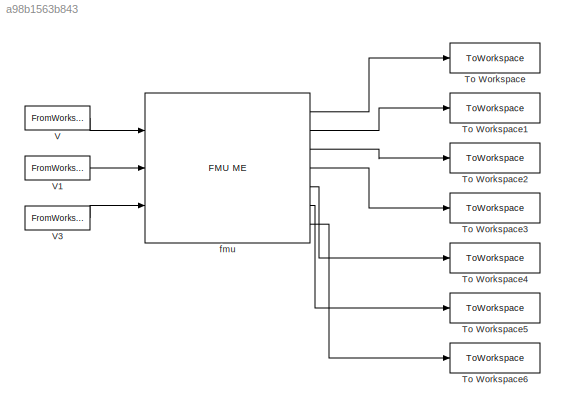
MODEL slx_a98b1563b843
KIND model
CONFIG AbsTol = auto
CONFIG EnableMultiTasking = off
CONFIG FixedStep = 0.005
CONFIG MaxStep = auto
CONFIG MinStep = auto
CONFIG RelTol = 1e-4
CONFIG SampleTimeConstraint = Unconstrained
CONFIG Solver = VariableStepAuto
CONFIG SolverName = VariableStepAuto
CONFIG StartTime = 0.0
CONFIG StopTime = 7.5
BLOCK [ToWorkspace] To Workspace
  FixptAsFi = on
  MaxDataPoints = inf
  Ports = [1]
  SampleTime = 0.005
  SaveFormat = Timeseries
  VariableName = Pout
BLOCK [ToWorkspace] To Workspace1
  FixptAsFi = on
  MaxDataPoints = inf
  Ports = [1]
  SampleTime = 0.005
  SaveFormat = Timeseries
  VariableName = Qout
BLOCK [ToWorkspace] To Workspace2
  FixptAsFi = on
  MaxDataPoints = inf
  Ports = [1]
  SampleTime = 0.005
  SaveFormat = Timeseries
  VariableName = Vt
BLOCK [ToWorkspace] To Workspace3
  FixptAsFi = on
  MaxDataPoints = inf
  Ports = [1]
  SampleTime = 0.005
  SaveFormat = Timeseries
  VariableName = Ifd
BLOCK [ToWorkspace] To Workspace4
  FixptAsFi = on
  MaxDataPoints = inf
  Ports = [1]
  SampleTime = 0.005
  SaveFormat = Timeseries
  VariableName = w
BLOCK [ToWorkspace] To Workspace5
  FixptAsFi = on
  MaxDataPoints = inf
  Ports = [1]
  SampleTime = 0.005
  SaveFormat = Timeseries
  VariableName = Efd
BLOCK [ToWorkspace] To Workspace6
  FixptAsFi = on
  MaxDataPoints = inf
  Ports = [1]
  SampleTime = 0.005
  SaveFormat = Timeseries
  VariableName = VPSS
BLOCK [FromWorkspace] V
  VariableName = r1
BLOCK [FromWorkspace] V1
  VariableName = r2
BLOCK [FromWorkspace] V3
  VariableName = r3
BLOCK [Reference] fmu  REF=fmu_me_lib/FMU ME
  Description = Simulates an FMU for Model Exchange 1.0 or Model Exchange 2.0.
  Ports = [3, 7]
  SourceBlock = fmu_me_lib/FMU ME
  UserDataPersistent = on
LINE V1:1 -> fmu:2
LINE V3:1 -> fmu:3
LINE V:1 -> fmu:1
LINE fmu:1 -> To Workspace:1
LINE fmu:2 -> To Workspace1:1
LINE fmu:3 -> To Workspace2:1
LINE fmu:4 -> To Workspace3:1
LINE fmu:5 -> To Workspace4:1
LINE fmu:6 -> To Workspace5:1
LINE fmu:7 -> To Workspace6:1
